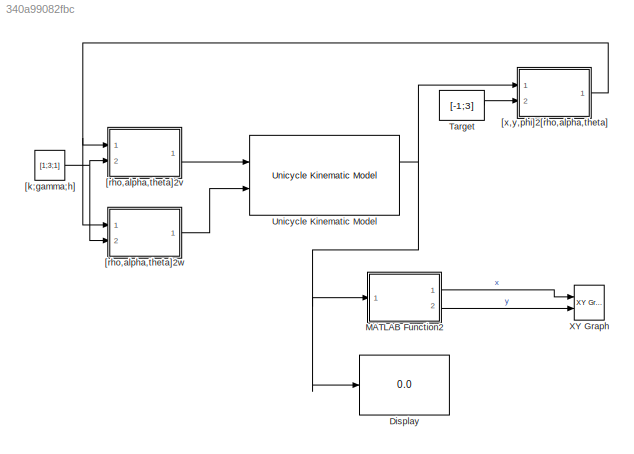
MODEL slx_340a99082fbc
KIND model
CONFIG AbsTol = auto
CONFIG EnableMultiTasking = off
CONFIG FixedStep = auto
CONFIG MaxStep = auto
CONFIG MinStep = auto
CONFIG RelTol = 1e-3
CONFIG SampleTimeConstraint = Unconstrained
CONFIG SolverName = VariableStepAuto
CONFIG StartTime = 0.0
CONFIG StopTime = 10.0
BLOCK [Display] Display
  Decimation = 1
  Ports = [1]
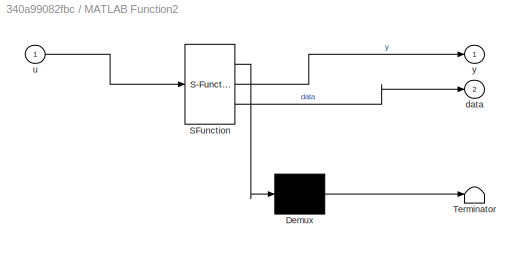
BLOCK [SubSystem] MATLAB Function2
  ErrorFcn = Stateflow.Translate.translate
  PermitHierarchicalResolution = ExplicitOnly
  Ports = [1, 2]
  RequestExecContextInheritance = off
  SFBlockType = MATLAB Function
  TreatAsAtomicUnit = on
BLOCK [Demux] MATLAB Function2/ Demux 
  Outputs = 1
  Ports = [1, 1]
BLOCK [S-Function] MATLAB Function2/ SFunction 
  EnableBusSupport = on
  FunctionName = sf_sfun
  PortCounts = [1 3]
  Ports = [1, 3]
  SFcnIsStateOwnerBlock = off
  SFunctionDeploymentMode = off
  Tag = Stateflow S-Function 3
BLOCK [Terminator] MATLAB Function2/ Terminator 
BLOCK [Outport] MATLAB Function2/data
  Port = 2
BLOCK [Inport] MATLAB Function2/u
BLOCK [Outport] MATLAB Function2/y
BLOCK [Constant] Target
  Value = [-1;3]
  VectorParams1D = off
BLOCK [Reference] Unicycle Kinematic Model  REF=robotmobilelib/Unicycle Kinematic Model
  Ports = [2, 2]
  SourceBlock = robotmobilelib/Unicycle Kinematic Model
  SourceProductBaseCode = RO
  SourceType = Unicycle Kinematic Model
BLOCK [Reference] XY Graph  REF=simulink/Sinks/XY Graph
  Ports = [2]
  SourceBlock = simulink/Sinks/XY Graph
  SourceProductBaseCode = SL
  SourceType = XY scope.
BLOCK [Constant] [k;gamma;h]
  Value = [1;3;1]
  VectorParams1D = off
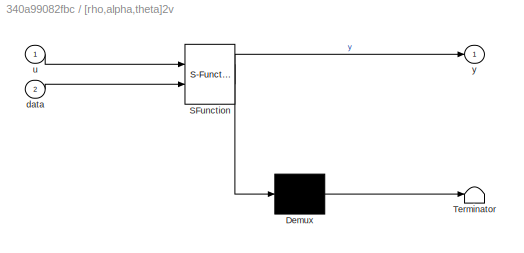
BLOCK [SubSystem] [rho,alpha,theta]2v
  ErrorFcn = Stateflow.Translate.translate
  PermitHierarchicalResolution = ExplicitOnly
  Ports = [2, 1]
  RequestExecContextInheritance = off
  SFBlockType = MATLAB Function
  TreatAsAtomicUnit = on
BLOCK [Demux] [rho,alpha,theta]2v/ Demux 
  Outputs = 1
  Ports = [1, 1]
BLOCK [S-Function] [rho,alpha,theta]2v/ SFunction 
  EnableBusSupport = on
  FunctionName = sf_sfun
  PortCounts = [2 2]
  Ports = [2, 2]
  SFcnIsStateOwnerBlock = off
  SFunctionDeploymentMode = off
  Tag = Stateflow S-Function 2
BLOCK [Terminator] [rho,alpha,theta]2v/ Terminator 
BLOCK [Inport] [rho,alpha,theta]2v/data
  Port = 2
BLOCK [Inport] [rho,alpha,theta]2v/u
BLOCK [Outport] [rho,alpha,theta]2v/y
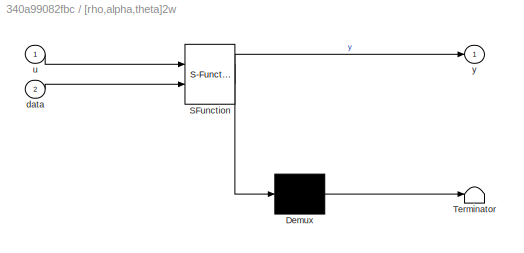
BLOCK [SubSystem] [rho,alpha,theta]2w
  ErrorFcn = Stateflow.Translate.translate
  PermitHierarchicalResolution = ExplicitOnly
  Ports = [2, 1]
  RequestExecContextInheritance = off
  SFBlockType = MATLAB Function
  TreatAsAtomicUnit = on
BLOCK [Demux] [rho,alpha,theta]2w/ Demux 
  Outputs = 1
  Ports = [1, 1]
BLOCK [S-Function] [rho,alpha,theta]2w/ SFunction 
  EnableBusSupport = on
  FunctionName = sf_sfun
  PortCounts = [2 2]
  Ports = [2, 2]
  SFcnIsStateOwnerBlock = off
  SFunctionDeploymentMode = off
  Tag = Stateflow S-Function 1
BLOCK [Terminator] [rho,alpha,theta]2w/ Terminator 
BLOCK [Inport] [rho,alpha,theta]2w/data
  Port = 2
BLOCK [Inport] [rho,alpha,theta]2w/u
BLOCK [Outport] [rho,alpha,theta]2w/y
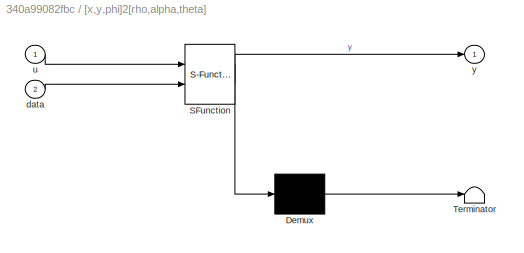
BLOCK [SubSystem] [x,y,phi]2[rho,alpha,theta]
  ErrorFcn = Stateflow.Translate.translate
  PermitHierarchicalResolution = ExplicitOnly
  Ports = [2, 1]
  RequestExecContextInheritance = off
  SFBlockType = MATLAB Function
  TreatAsAtomicUnit = on
BLOCK [Demux] [x,y,phi]2[rho,alpha,theta]/ Demux 
  Outputs = 1
  Ports = [1, 1]
BLOCK [S-Function] [x,y,phi]2[rho,alpha,theta]/ SFunction 
  EnableBusSupport = on
  FunctionName = sf_sfun
  PortCounts = [2 2]
  Ports = [2, 2]
  SFcnIsStateOwnerBlock = off
  SFunctionDeploymentMode = off
  Tag = Stateflow S-Function 4
BLOCK [Terminator] [x,y,phi]2[rho,alpha,theta]/ Terminator 
BLOCK [Inport] [x,y,phi]2[rho,alpha,theta]/data
  Port = 2
BLOCK [Inport] [x,y,phi]2[rho,alpha,theta]/u
BLOCK [Outport] [x,y,phi]2[rho,alpha,theta]/y
LINE MATLAB Function2:1 -> XY Graph:1
LINE MATLAB Function2:2 -> XY Graph:2
LINE Target:1 -> [x,y,phi]2[rho,alpha,theta]:2
NET Unicycle Kinematic Model:1 -> Display:1, MATLAB Function2:1, [x,y,phi]2[rho,alpha,theta]:1
NET [k;gamma;h]:1 -> [rho,alpha,theta]2v:2, [rho,alpha,theta]2w:2
LINE [rho,alpha,theta]2v:1 -> Unicycle Kinematic Model:1
LINE [rho,alpha,theta]2w:1 -> Unicycle Kinematic Model:2
NET [x,y,phi]2[rho,alpha,theta]:1 -> [rho,alpha,theta]2v:1, [rho,alpha,theta]2w:1
note: NET lines group one-source signal fan-out (src -> all destinations, sorted); 1:1 wires keep LINE
CHART [rho,alpha,theta]2v states=1 transitions=1
  STATE_LABEL 'eML_blk_kernel()'
  STATE_LABEL 'SCRIPT:\nfunction y = fcn(u, data)\n%data=[k;gamma;h], u=[rho,alpha,theta]\n\ny = data(2)*cos(u(2))*u(1);\n'
CHART MATLAB Function2 states=1 transitions=1
  STATE_LABEL 'eML_blk_kernel()'
  STATE_LABEL 'SCRIPT:\nfunction [y,data] = fcn(u)\ny=u(1);\ndata = u(2);\n'
CHART [x,y,phi]2[rho,alpha,theta] states=1 transitions=1
  STATE_LABEL 'eML_blk_kernel()'
  STATE_LABEL 'SCRIPT:\nfunction y = fcn(u, data)\n%u=[x;y;phi], data=[x_c;y_c], y=[rho,alpha,theta]\nrho=sqrt((u(1)-data(1))^2+(u(2)-data(2))^2);\nalpha=-u(3)+atan2((data(2)-u(2)),(data(1)-u(1)));\ntheta=atan2((data(2)-u(2)),(data(1)-u(1)));\ny =[rho;alpha;theta];\n'
CHART [rho,alpha,theta]2w states=1 transitions=1
  STATE_LABEL 'eML_blk_kernel()'
  STATE_LABEL 'SCRIPT:\nfunction y = fcn(u, data)\n%data=[k;gamma;h], u=[rho,alpha,theta]\ny =data(1)*u(2)+data(2)*cos(u(2))*sin(u(2))*(u(2)+data(3)*u(3))/u(2);'
CHART  states=0 transitions=0
CHART  states=0 transitions=0
CHART  states=0 transitions=0
CHART  states=0 transitions=0
